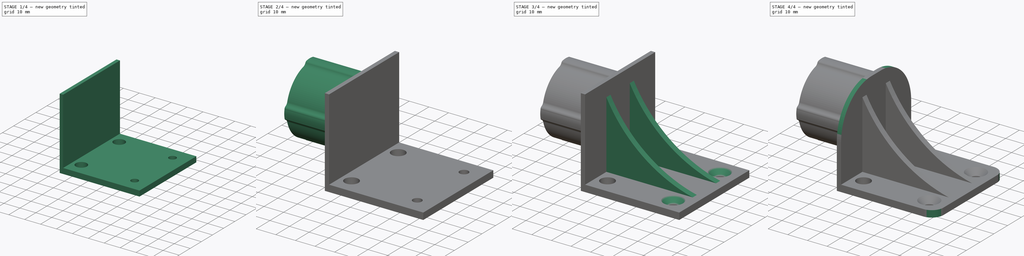
[diagram: build sequence overview — one tinted view per stage of 4, left to right]
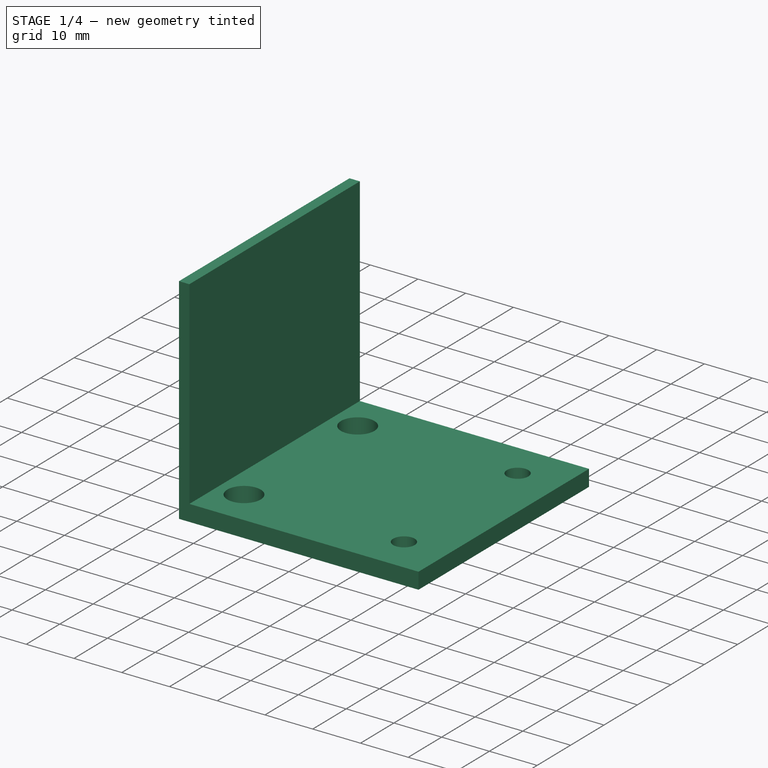
[diagram: stage 1 of 4 — iso view after this stage's code; geometry added in this stage tinted green]
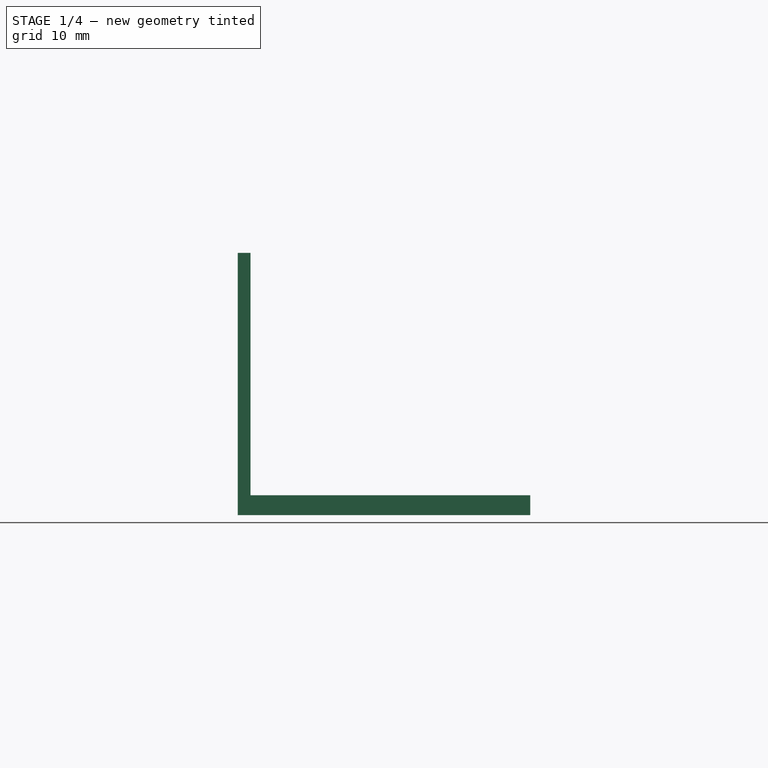
[diagram: stage 1 of 4 — front view after this stage's code; geometry added in this stage tinted green]
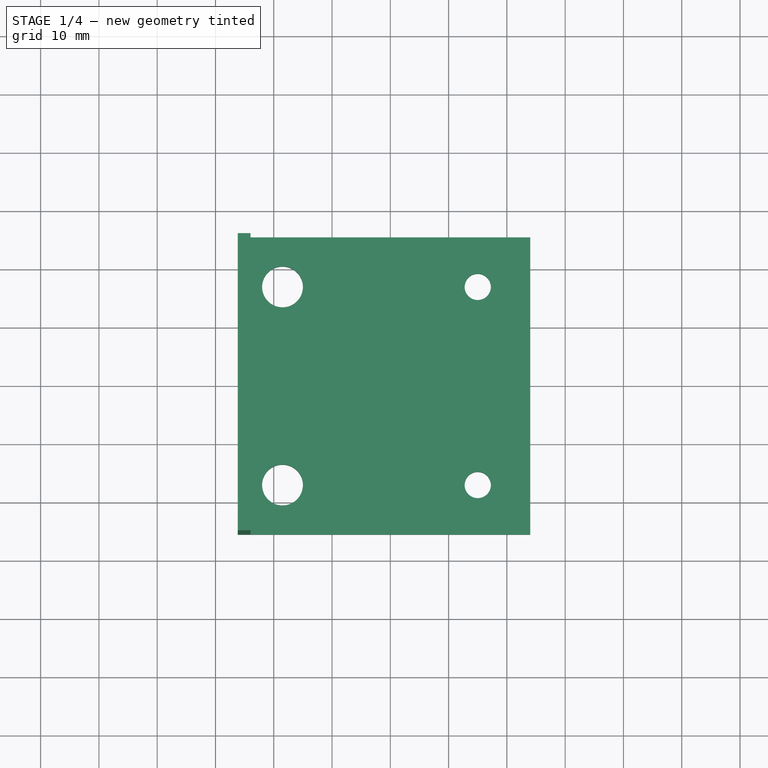
[diagram: stage 1 of 4 — top view after this stage's code; geometry added in this stage tinted green]
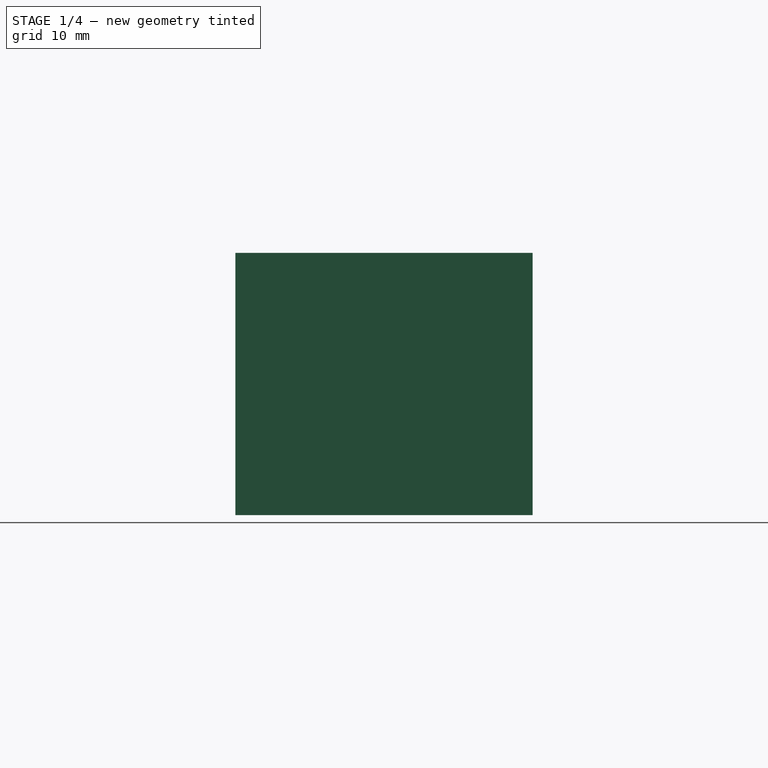
[diagram: stage 1 of 4 — right view after this stage's code; geometry added in this stage tinted green]
FCSTD DOCUMENT  (FreeCAD 1.0R39319 (Git))
Label: project_3
License: All rights reserved
LicenseURL: https://en.wikipedia.org/wiki/All_rights_reserved
objects: Sketcher::SketchObject×4, PartDesign::Pad×4, Image::ImagePlane×3, Measure::MeasureDistanceDetached×2, PartDesign::Fillet×2, PartDesign::PolarPattern×1, PartDesign::Mirrored×1, PartDesign::Chamfer×1, PartDesign::Body×1
note: 34 computed .brp shape members not serialized (recipe doc carries the construction recipe); baked Part::Feature solids carry a one-line shape summary decoded from their .brp

FEATURE [Sketcher::SketchObject] Sketch
  ArcFitTolerance = 0
  AttachmentOffset = pos=(0,26,0) rot=(0,0,1;0rad)
  FullyConstrained = true
  MakeInternals = false
  MapMode = 5
  Placement = pos=(-26.17,0,26) rot=(0.57735,-0.57735,-0.57735;2.0944rad)
  sketch-geometry (15):
    g0: LineSegment [constr] StartX=0 StartY=0 StartZ=0 EndX=16.4207 EndY=4.39992 EndZ=0
    g1: LineSegment [constr] StartX=0 StartY=0 StartZ=0 EndX=-4.40069 EndY=16.4236 EndZ=0
    g2: ArcOfCircle CenterX=0 CenterY=0 CenterZ=0 NormalX=0 NormalY=0 NormalZ=1 AngleXU=0 Radius=17 StartAngle=0.261799 EndAngle=1.30765
    g3: ArcOfCircle CenterX=0 CenterY=0 CenterZ=0 NormalX=0 NormalY=0 NormalZ=1 AngleXU=0 Radius=15 StartAngle=0.261799 EndAngle=1.43505
    g4: LineSegment StartX=-4.40069 StartY=16.4236 StartZ=0 EndX=-3.88229 EndY=14.4889 EndZ=0
    g5: LineSegment StartX=14.4889 StartY=3.88229 StartZ=0 EndX=16.4207 EndY=4.39992 EndZ=0
    g6: ArcOfCircle CenterX=-5.36537 CenterY=18.73 CenterZ=0 NormalX=0 NormalY=0 NormalZ=1 AngleXU=0 Radius=2.5 StartAngle=5.10854 EndAngle=5.8355
    g7: ArcOfCircle CenterX=-2.03 CenterY=17.1283 CenterZ=0 NormalX=0 NormalY=0 NormalZ=1 AngleXU=0 Radius=1.2 StartAngle=1.54579 EndAngle=2.6939
    g8: ArcOfCircle CenterX=-6.2e-15 CenterY=8.53 CenterZ=0 NormalX=0 NormalY=0 NormalZ=1 AngleXU=0 Radius=10 StartAngle=1.36944 EndAngle=1.77215
    g9: ArcOfCircle CenterX=2.03 CenterY=17.1283 CenterZ=0 NormalX=0 NormalY=0 NormalZ=1 AngleXU=0 Radius=1.2 StartAngle=0.447688 EndAngle=1.5958
    g10: ArcOfCircle CenterX=5.36537 CenterY=18.73 CenterZ=0 NormalX=0 NormalY=0 NormalZ=1 AngleXU=0 Radius=2.5 StartAngle=3.58928 EndAngle=4.3255
    g11: LineSegment StartX=-2.03 StartY=16.8784 StartZ=0 EndX=-2.03 EndY=14.862 EndZ=0
    g12: LineSegment StartX=2.03 StartY=16.8784 StartZ=0 EndX=2.03 EndY=14.862 EndZ=0
    g13: ArcOfCircle CenterX=0 CenterY=0 CenterZ=0 NormalX=0 NormalY=0 NormalZ=1 AngleXU=0 Radius=15 StartAngle=1.70655 EndAngle=1.8326
    g14: ArcOfCircle CenterX=0 CenterY=0 CenterZ=0 NormalX=0 NormalY=0 NormalZ=1 AngleXU=0 Radius=17 StartAngle=1.4511 EndAngle=1.69049
  constraints (45):
    c: Coincident(g0,g-1)
    c: Coincident(g1,g0)
    c: Coincident(g2,g0)
    c: Coincident(g2,g0)
    c: Angle(g0,g1) = 1.5708
    c: Coincident(g3,g0)
    c: PointOnObject(g13,g1)
    c: PointOnObject(g3,g0)
    c: Coincident(g4,g1)
    c: Coincident(g4,g13)
    c: Coincident(g5,g3)
    c: Coincident(g5,g0)
    c: Radius(g2) = 17
    c: Radius(g3) = 15
    c: Angle(g-1,g0) = 0.261799
    c: Coincident(g6,g1)
    c: Coincident(g8,g7)
    c: Coincident(g9,g8)
    c: Tangent(g7,g6) = 1.5708
    c: Tangent(g10,g9) = 1.5708
    c: DistanceY(g0,g8) = 8.53
    c: Symmetric(g8,g7,g-2)
    c: Symmetric(g7,g9,g-2)
    c: Symmetric(g10,g6,g-2)
    c: Radius(g6) = 2.5
    c: Radius(g7) = 1.2
    c: Radius(g8) = 10
    c: Distance(g9,g7) = 4.06
    c: Distance(g7,g8) = 4
    c: PointOnObject(g11,g13)
    c: PointOnObject(g12,g14)
    c: Vertical(g12)
    c: Vertical(g11)
    c: Symmetric(g12,g11,g-2)
    c: PointOnObject(g7,g11)
    c: Coincident(g14,g11)
    c: DistanceY(g0,g6) = 18.73
    c: Equal(g3,g13)
    c: PointOnObject(g3,g12)
    c: PointOnObject(g13,g11)
    c: Coincident(g3,g13)
    c: Equal(g2,g14)
    c: Coincident(g2,g10)
    c: PointOnObject(g14,g12)
    c: Coincident(g2,g14)
FEATURE [Image::ImagePlane] Base  label="BasePlane"
  Placement = pos=(1,0,2) rot=(0,0,1;0.05236rad)
  XSize = 172.371
  YSize = 114.485
FEATURE [Image::ImagePlane] side  label="SidePlane"
  Placement = pos=(-43,-5.3e-15,24) rot=(0,0.707107,0.707107;3.14159rad)
  XSize = 169.83
  YSize = 112.797
FEATURE [Sketcher::SketchObject] Sketch001
  ArcFitTolerance = 0
  FullyConstrained = true
  MakeInternals = false
  MapMode = 5
  sketch-geometry (8):
    g0: LineSegment StartX=-24 StartY=25.5 StartZ=0 EndX=-24 EndY=-25.5 EndZ=0
    g1: LineSegment StartX=-24 StartY=-25.5 StartZ=0 EndX=24 EndY=-25.5 EndZ=0
    g2: LineSegment StartX=24 StartY=-25.5 StartZ=0 EndX=24 EndY=25.5 EndZ=0
    g3: LineSegment StartX=24 StartY=25.5 StartZ=0 EndX=-24 EndY=25.5 EndZ=0
    g4: Circle CenterX=-18.5 CenterY=17 CenterZ=0 NormalX=0 NormalY=0 NormalZ=1 AngleXU=0 Radius=3.5
    g5: Circle CenterX=15 CenterY=17 CenterZ=0 NormalX=0 NormalY=0 NormalZ=1 AngleXU=0 Radius=2.25
    g6: Circle CenterX=-18.5 CenterY=-17 CenterZ=0 NormalX=0 NormalY=0 NormalZ=1 AngleXU=0 Radius=3.5
    g7: Circle CenterX=15 CenterY=-17 CenterZ=0 NormalX=0 NormalY=0 NormalZ=1 AngleXU=0 Radius=2.25
  constraints (23):
    c: Coincident(g0,g1)
    c: Coincident(g1,g2)
    c: Coincident(g2,g3)
    c: Coincident(g3,g0)
    c: Horizontal(g1)
    c: Horizontal(g3)
    c: DistanceX(g3,g3) = 48
    c: DistanceY(g2,g2) = 51
    c: Symmetric(g0,g2,g-1)
    c: Horizontal(g4,g5)
    c: Diameter(g4) = 7
    c: Diameter(g5) = 4.5
    c: Diameter(g6) = 7
    c: Diameter(g7) = 4.5
    c: Horizontal(g7,g6)
    c: Vertical(g4,g6)
    c: Vertical(g7,g5)
    c: DistanceY(g4,g0) = 8.5
    c: DistanceX(g7,g1) = 9
    c: DistanceX(g0,g4) = 5.5
    c: DistanceY(g1,g7) = 8.5
    c: Vertical(g2)
    c: Vertical(g0)
FEATURE [PartDesign::Pad] Pad
  Direction = (0,0,1)
  Length = 3.41
  Length2 = 10
  Profile = -> Sketch001
  ReferenceAxis = -> Sketch001 [N_Axis]
  Refine = true
  Suppressed = false
  Type = 0
FEATURE [Image::ImagePlane] Top  label="TopPlane"
  Placement = pos=(-24.86,-3e-15,19.44) rot=(0.57735,-0.57735,-0.57735;2.0944rad)
  XSize = 142.282
  YSize = 94.4844
FEATURE [Sketcher::SketchObject] Sketch002
  ArcFitTolerance = 0
  ExternalGeometry = -> [Sketch001]
  FullyConstrained = true
  MakeInternals = false
  MapMode = 5
  Placement = pos=(-24,0,0) rot=(0.57735,-0.57735,-0.57735;2.0944rad)
  sketch-geometry (4):
    g0: LineSegment StartX=-25.5 StartY=0 StartZ=0 EndX=25.5 EndY=0 EndZ=0
    g1: LineSegment StartX=25.5 StartY=0 StartZ=0 EndX=25.5 EndY=45 EndZ=0
    g2: LineSegment StartX=25.5 StartY=45 StartZ=0 EndX=-25.5 EndY=45 EndZ=0
    g3: LineSegment StartX=-25.5 StartY=45 StartZ=0 EndX=-25.5 EndY=0 EndZ=0
  constraints (10):
    c: Coincident(g0,g1)
    c: Coincident(g1,g2)
    c: Coincident(g2,g3)
    c: Coincident(g3,g0)
    c: Horizontal(g2)
    c: Vertical(g1)
    c: Vertical(g3)
    c: Coincident(g0,g-4)
    c: Coincident(g0,g-3)
    c: DistanceY(g1,g1) = 45
FEATURE [PartDesign::Pad] Pad001
  BaseFeature = -> Pad
  Direction = (-1,1e-16,-1e-16)
  Length = 2.17
  Length2 = 10
  Profile = -> Sketch002
  ReferenceAxis = -> Sketch002 [N_Axis]
  Refine = true
  Suppressed = false
  Type = 0
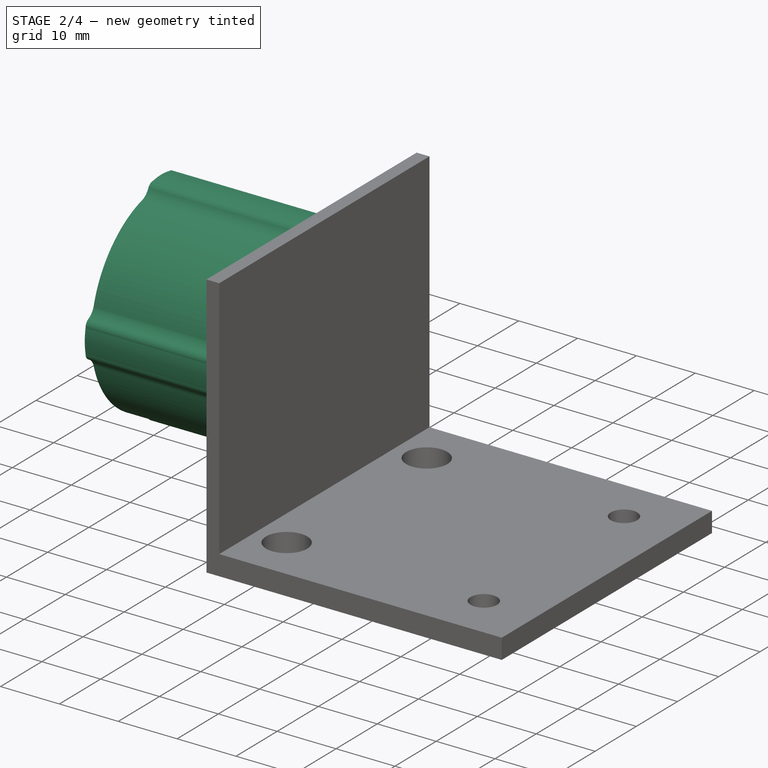
[diagram: stage 2 of 4 — iso view after this stage's code; geometry added in this stage tinted green]
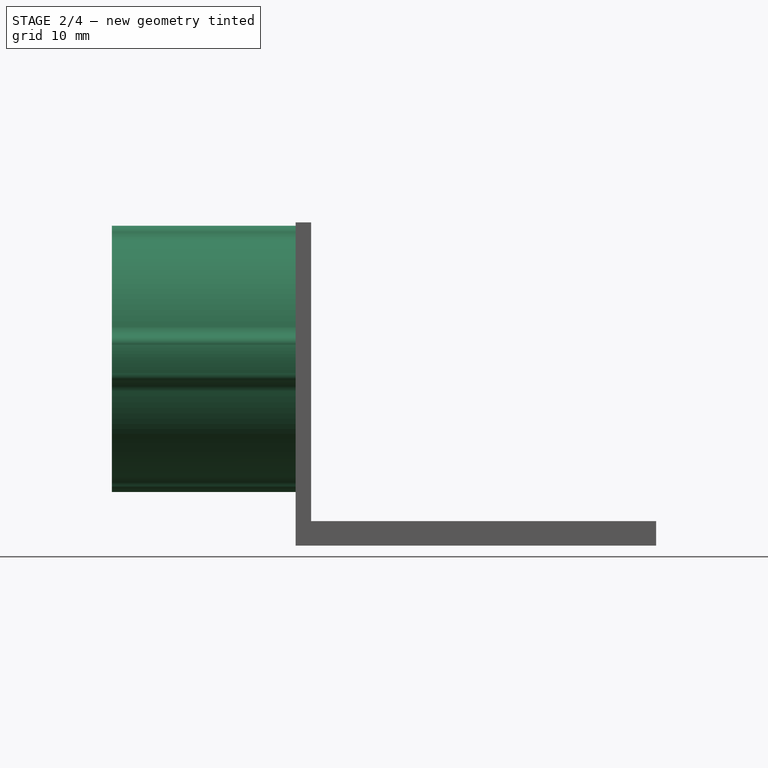
[diagram: stage 2 of 4 — front view after this stage's code; geometry added in this stage tinted green]
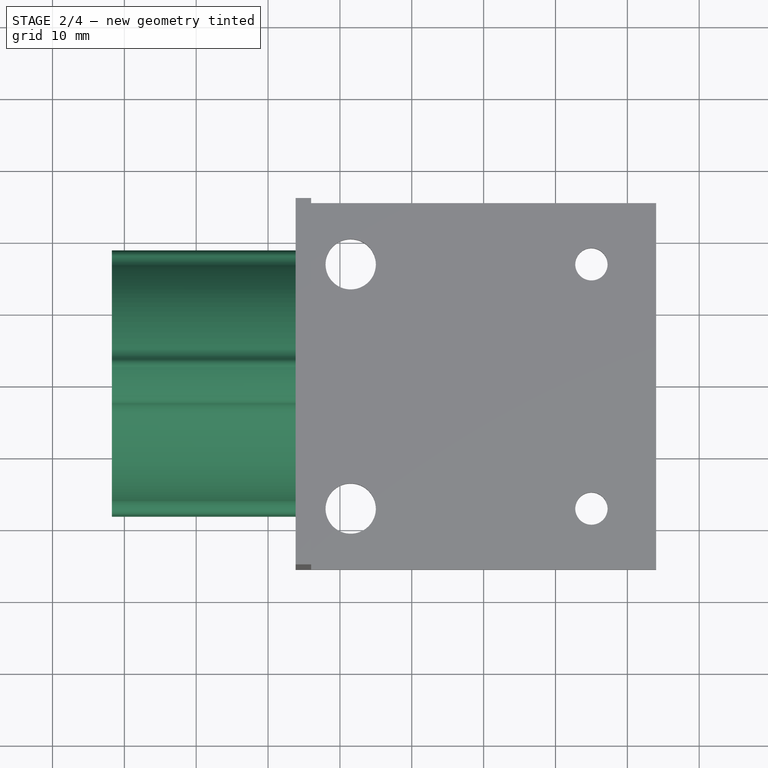
[diagram: stage 2 of 4 — top view after this stage's code; geometry added in this stage tinted green]
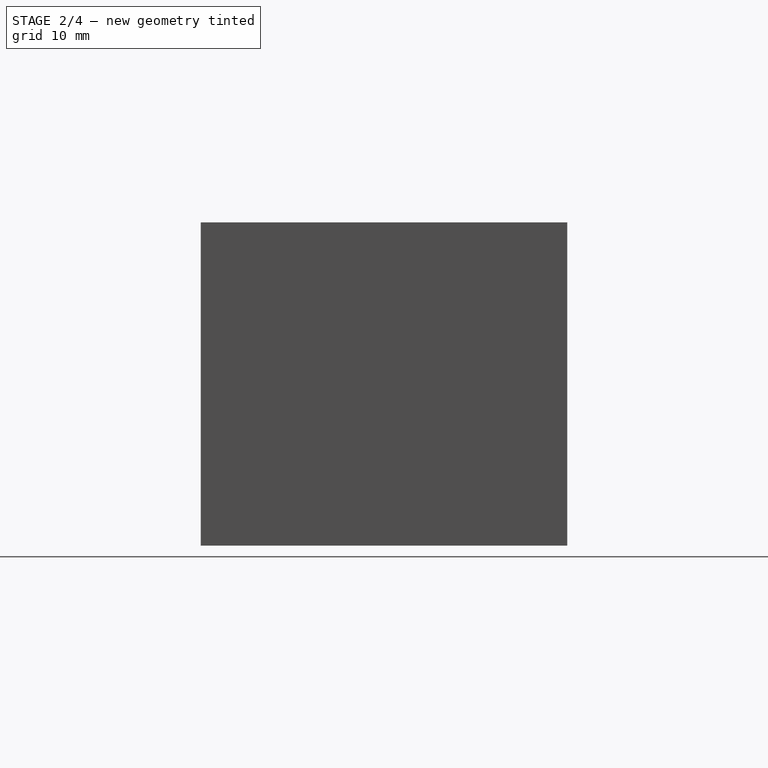
[diagram: stage 2 of 4 — right view after this stage's code; geometry added in this stage tinted green]
FEATURE [PartDesign::Pad] Pad002
  BaseFeature = -> Pad001
  Direction = (-1,1e-16,-1e-16)
  Length = 25.56
  Length2 = 10
  Profile = -> Sketch
  ReferenceAxis = -> Sketch [N_Axis]
  Refine = true
  Suppressed = false
  Type = 0
FEATURE [PartDesign::PolarPattern] PolarPattern
  Angle = 360
  Axis = -> Sketch [N_Axis]
  BaseFeature = -> Pad002
  Mode = 0
  Occurrences = 4
  Offset = 120
  Originals = -> [Pad002]
  Refine = true
  Suppressed = false
  TransformMode = 0
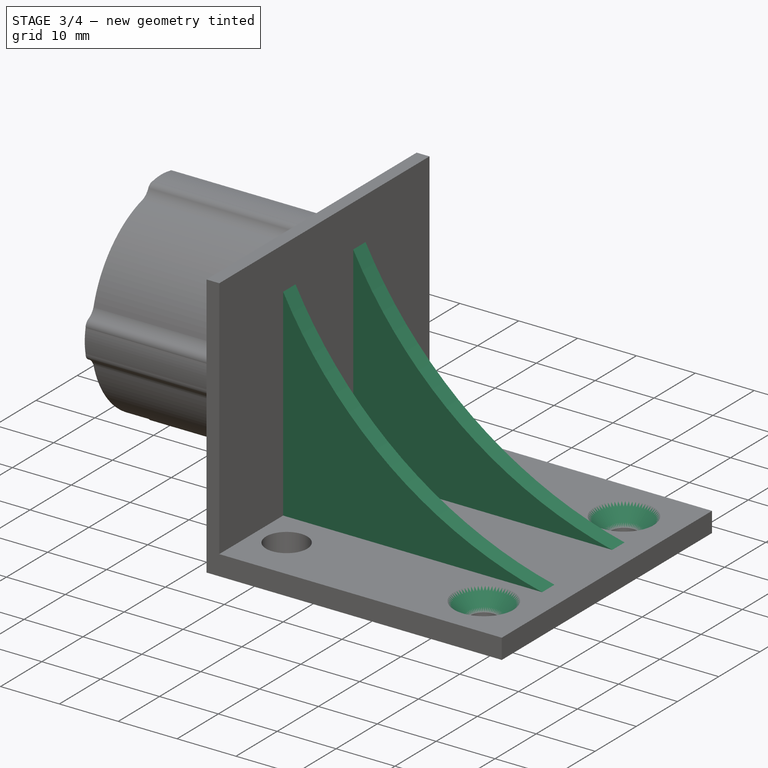
[diagram: stage 3 of 4 — iso view after this stage's code; geometry added in this stage tinted green]
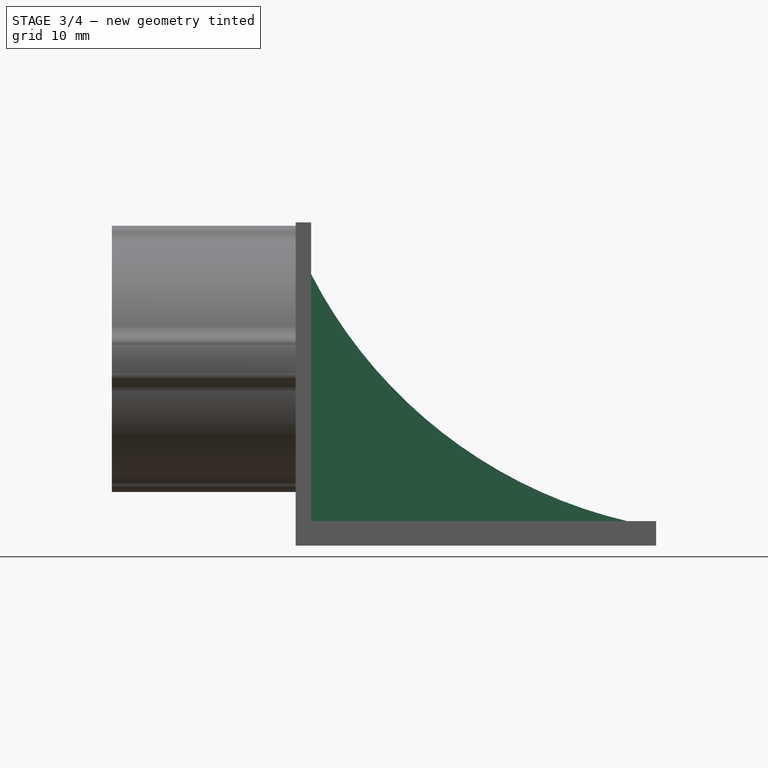
[diagram: stage 3 of 4 — front view after this stage's code; geometry added in this stage tinted green]
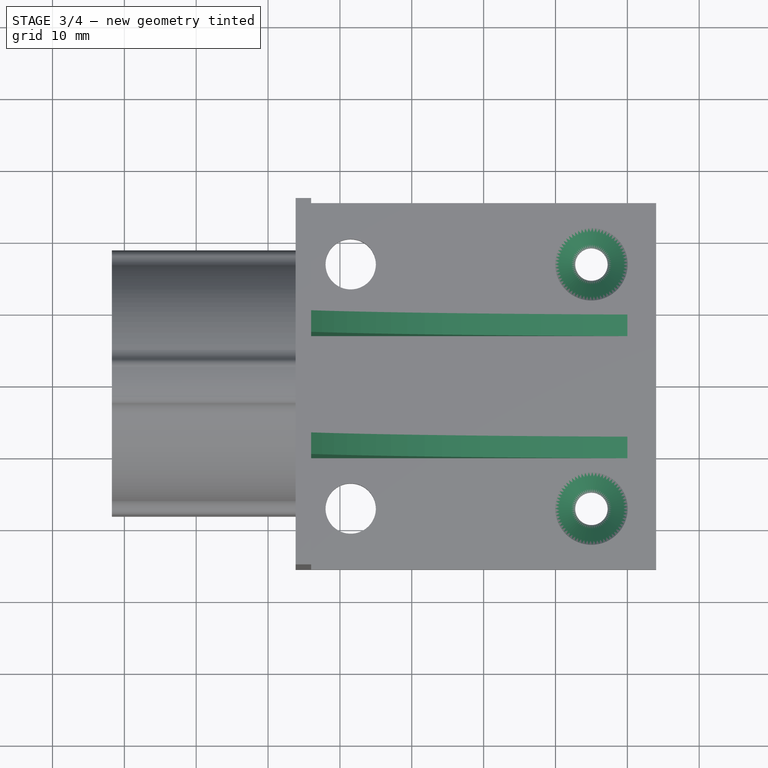
[diagram: stage 3 of 4 — top view after this stage's code; geometry added in this stage tinted green]
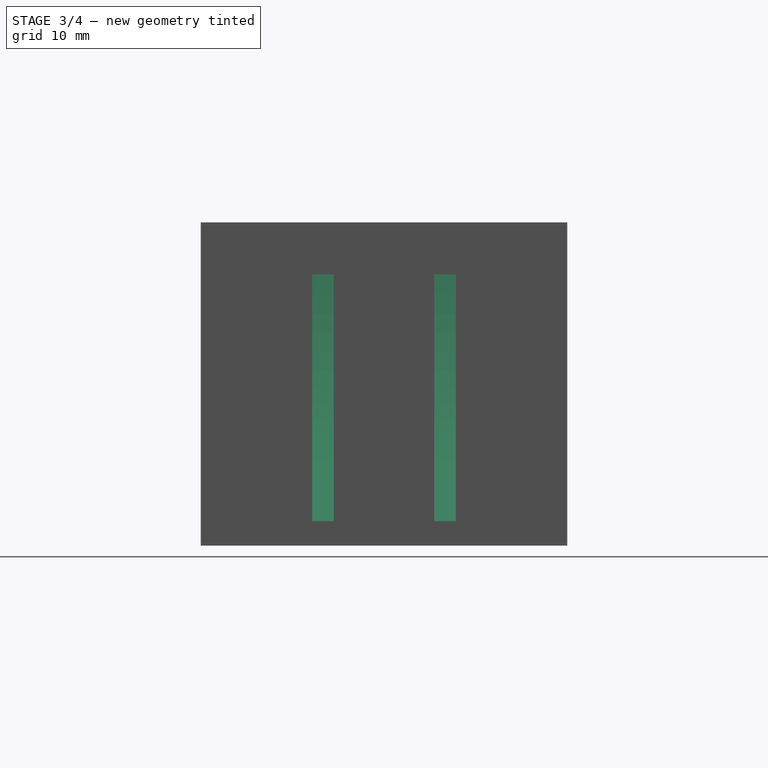
[diagram: stage 3 of 4 — right view after this stage's code; geometry added in this stage tinted green]
FEATURE [Sketcher::SketchObject] Sketch003
  ArcFitTolerance = 0
  AttachmentOffset = pos=(0,0,-7) rot=(0,0,1;0rad)
  ExternalGeometry = -> [PolarPattern]
  FullyConstrained = false
  MakeInternals = false
  MapMode = 5
  Placement = pos=(0,10,0) rot=(1,0,0;1.5708rad)
  sketch-geometry (3):
    g0: ArcOfCircle CenterX=35.1974 CenterY=68.2234 CenterZ=0 NormalX=0 NormalY=0 NormalZ=1 AngleXU=0 Radius=66.5713 StartAngle=3.61672 EndAngle=4.48207
    g1: LineSegment StartX=20 StartY=3.41 StartZ=0 EndX=-24 EndY=3.41 EndZ=0
    g2: LineSegment StartX=-24 StartY=3.41 StartZ=0 EndX=-24 EndY=37.77 EndZ=0
  constraints (8):
    c: PointOnObject(g0,g-3)
    c: PointOnObject(g0,g-4)
    c: Coincident(g1,g0)
    c: Coincident(g1,g-4)
    c: Coincident(g2,g1)
    c: Coincident(g2,g0)
    c: DistanceX(g1,g1) = 44
    c: DistanceY(g2,g2) = 34.36
FEATURE [Measure::MeasureDistanceDetached] Distance  label="Distance: 2,97 mm"
  Distance = 2.96701
  DistanceX = 0.0983953
  DistanceY = 2.96538
  DistanceZ = 0
  Position1 = (-13.0405,7.15972,3.5)
  Position2 = (-13.1389,10.1251,3.5)
FEATURE [PartDesign::Pad] Pad003
  BaseFeature = -> PolarPattern
  Direction = (0,-1,0)
  Length = 3
  Length2 = 10
  Profile = -> Sketch003
  ReferenceAxis = -> Sketch003 [N_Axis]
  Refine = true
  Suppressed = false
  Type = 0
FEATURE [PartDesign::Mirrored] Mirrored
  BaseFeature = -> Pad003
  MirrorPlane = -> XZ_Plane
  Originals = -> [Pad003]
  Refine = true
  Suppressed = false
  TransformMode = 0
FEATURE [Measure::MeasureDistanceDetached] Distance001  label="Distance: 2,81 mm"
  Distance = 2.80597
  DistanceX = 2.78722
  DistanceY = 0.323896
  DistanceZ = 0
  Position1 = (10.1932,17.6272,3.5)
  Position2 = (12.9805,17.3033,3.5)
FEATURE [PartDesign::Chamfer] Chamfer
  Angle = 45
  Base = -> Mirrored [Edge32,Edge30]
  BaseFeature = -> Mirrored
  ChamferType = 0
  FlipDirection = false
  Refine = true
  Size = 2.8
  Size2 = 1
  SupportTransform = false
  Suppressed = false
  UseAllEdges = false
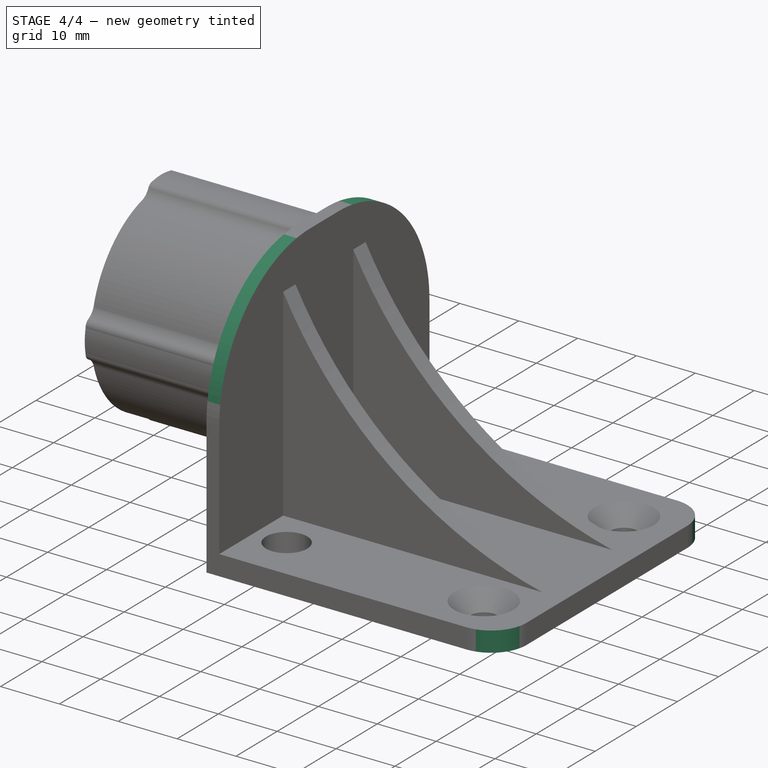
[diagram: stage 4 of 4 — iso view after this stage's code; geometry added in this stage tinted green]
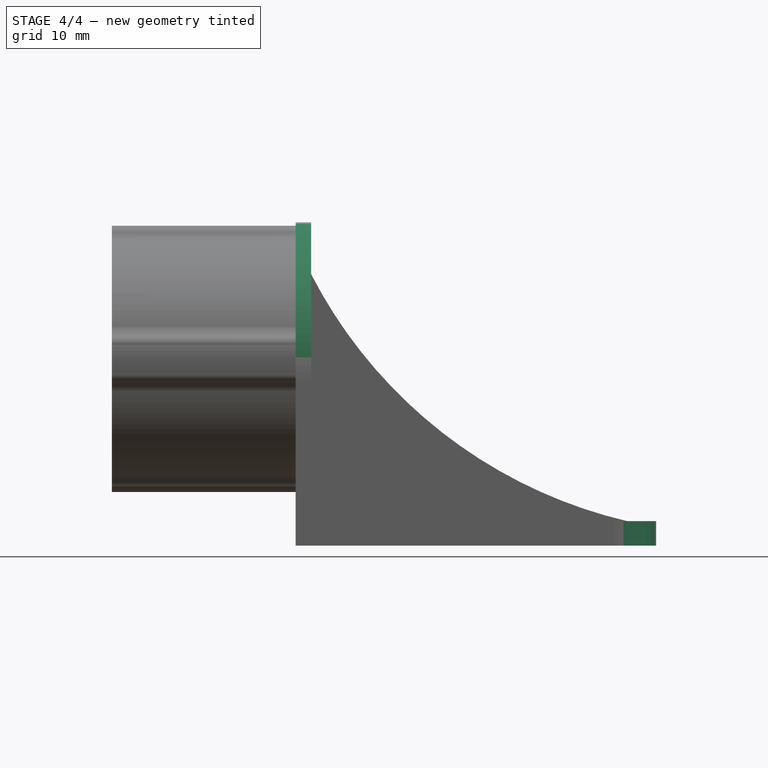
[diagram: stage 4 of 4 — front view after this stage's code; geometry added in this stage tinted green]
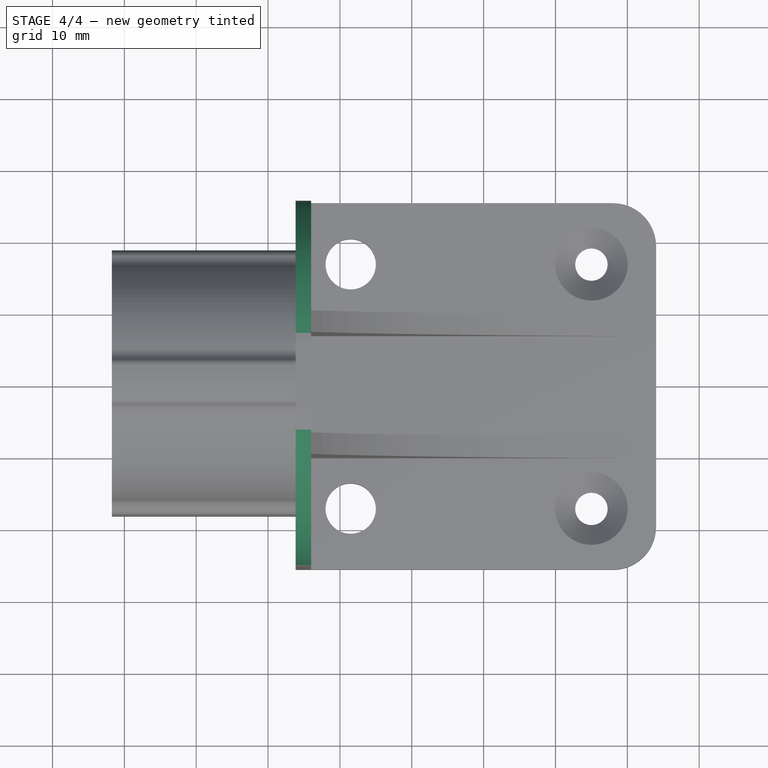
[diagram: stage 4 of 4 — top view after this stage's code; geometry added in this stage tinted green]
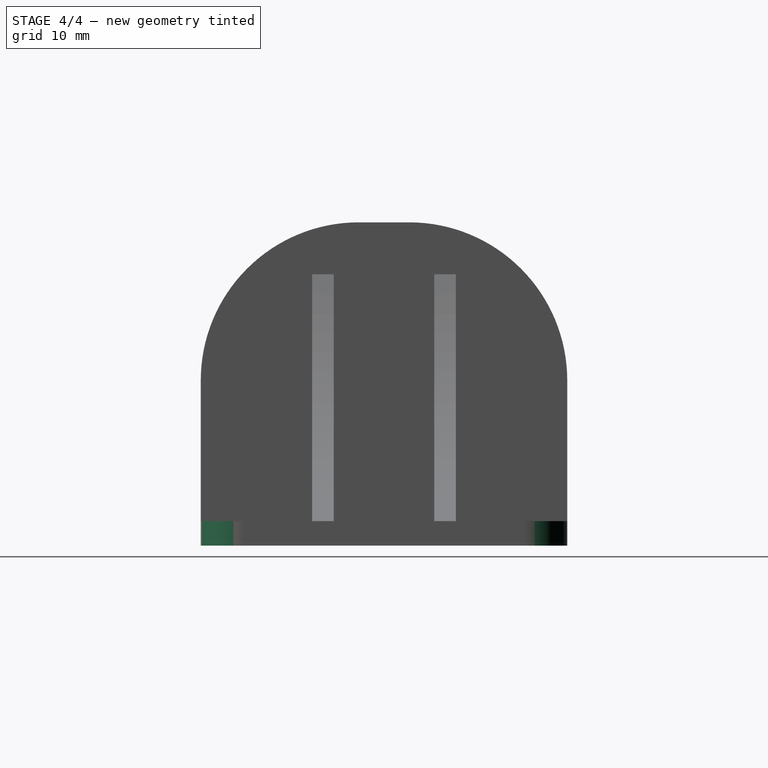
[diagram: stage 4 of 4 — right view after this stage's code; geometry added in this stage tinted green]
FEATURE [PartDesign::Fillet] Fillet
  Base = -> Chamfer [Edge20,Edge19]
  BaseFeature = -> Chamfer
  Radius = 6
  Refine = true
  SupportTransform = false
  Suppressed = false
  UseAllEdges = false
FEATURE [PartDesign::Fillet] Fillet001
  Base = -> Fillet [Edge32,Edge28]
  BaseFeature = -> Fillet
  Radius = 22
  Refine = true
  SupportTransform = false
  Suppressed = false
  UseAllEdges = false
FEATURE [PartDesign::Body] Body
  AllowCompound = false
  Group = -> [Sketch,Sketch001,Pad,Sketch002,Pad001,Pad002,PolarPattern,Sketch003,Pad003,Mirrored,Chamfer,Fillet,Fillet001]
  Origin = -> Origin
  Tip = -> Fillet001
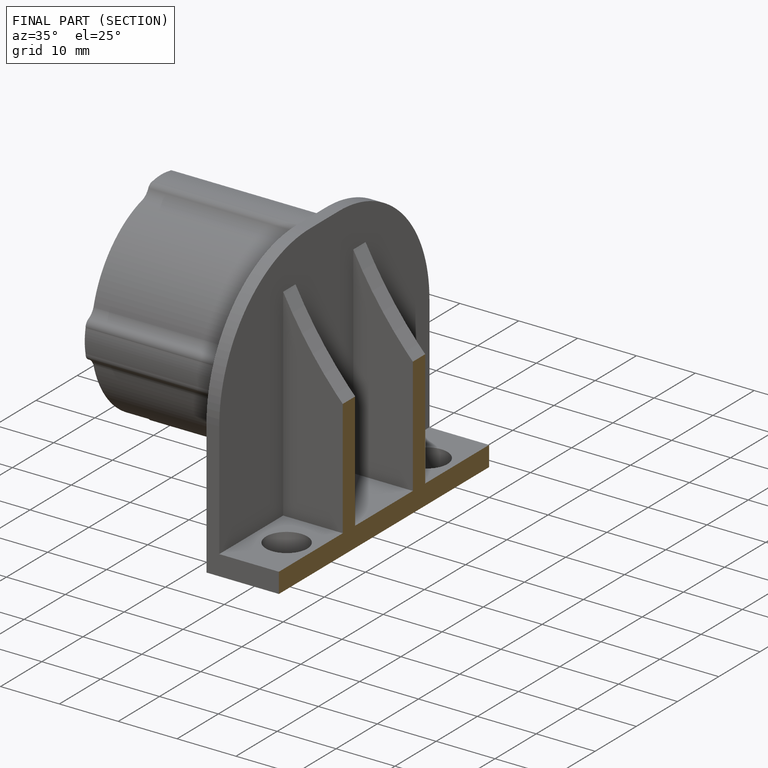
[diagram: finished part — half-section view (interior)]
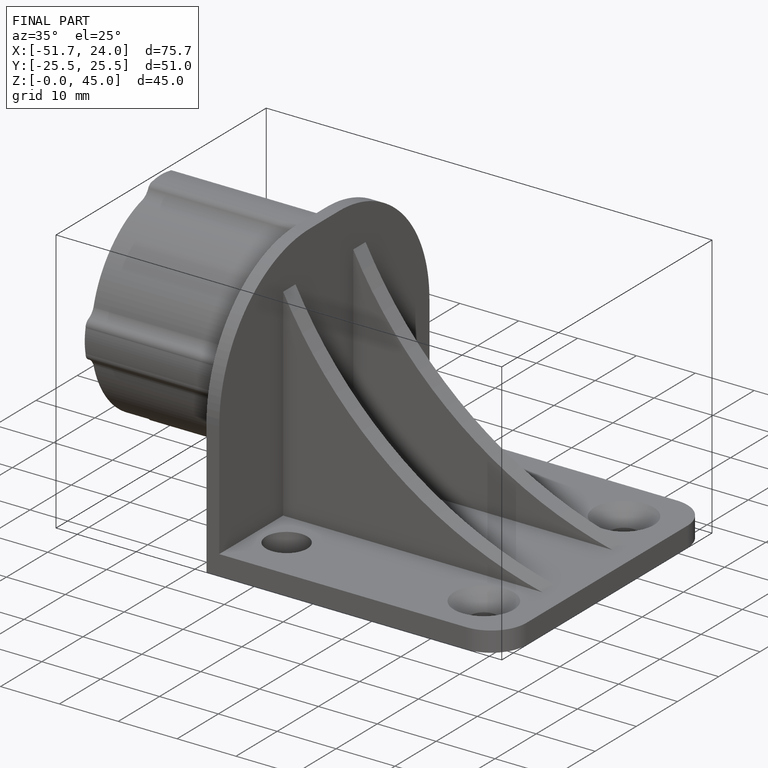
[diagram: finished part — iso view with bounding-box wireframe]
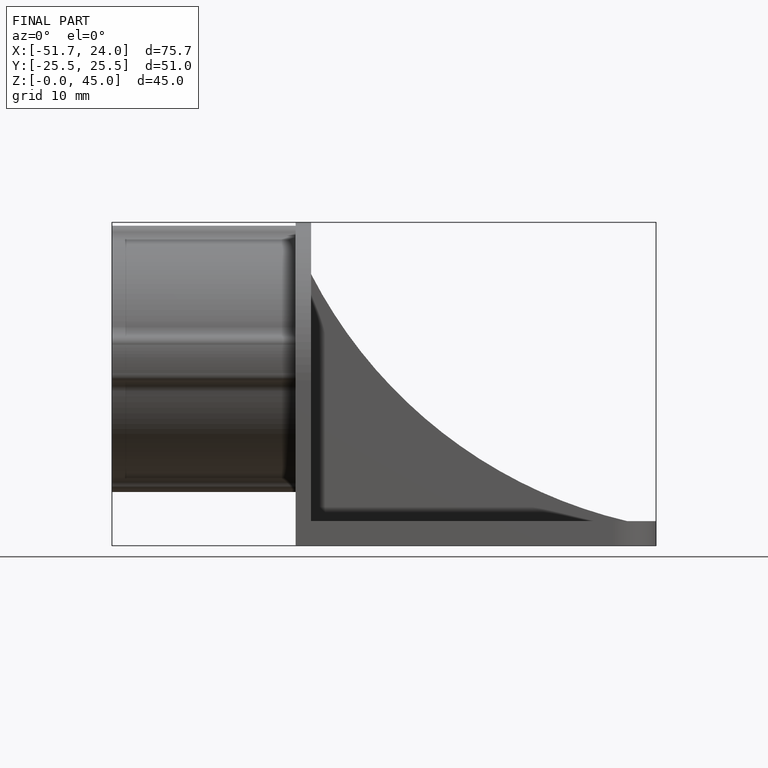
[diagram: finished part — front view with bounding-box wireframe]
